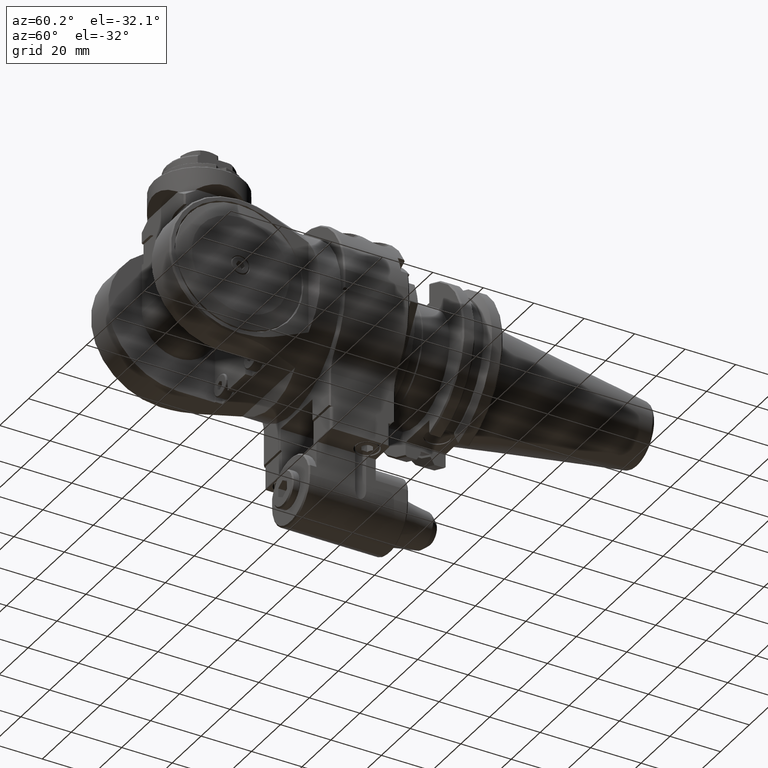
[diagram: clean part render]
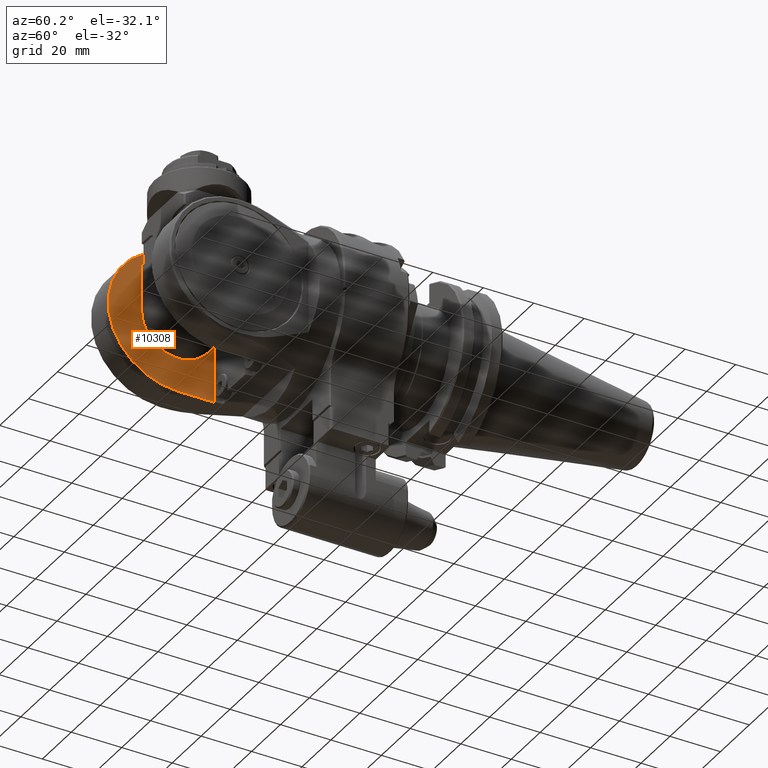
[diagram: same view with one face highlighted and labeled with its STEP entity id]
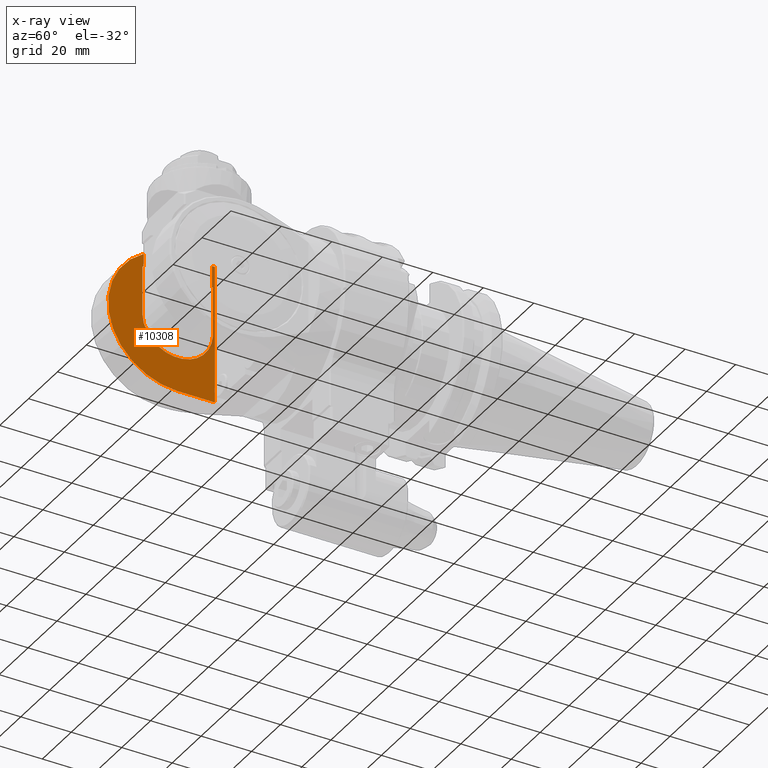
[diagram: x-ray of the same camera — body ghosted, the highlighted face saturated]
A machine part, auxiliary view. The second image highlights one B-rep face of the part: STEP entity #10308.
The next image is the same camera in x-ray: the body ghosted, the highlighted face saturated — about 3% of this face is hidden behind the body in this view.
In plain terms, the highlighted planar face has unit normal (-1, 0, 0).
Its self-contained STEP definition (entity closure, byte-faithful):
#694=LINE('',#16963,#1530);
#706=LINE('',#17006,#1542);
#866=LINE('',#18290,#1702);
#867=LINE('',#18291,#1703);
#868=LINE('',#18293,#1704);
#869=LINE('',#18295,#1705);
#870=LINE('',#18296,#1706);
#871=LINE('',#18297,#1707);
#872=LINE('',#18298,#1708);
#1530=VECTOR('',#12962,14.75);
#1542=VECTOR('',#12990,1.25);
#1702=VECTOR('',#13640,0.4731886124821);
#1703=VECTOR('',#13641,19.66643457369);
#1704=VECTOR('',#13642,19.6664345737);
#1705=VECTOR('',#13643,0.4731886124821);
#1706=VECTOR('',#13644,5.157887931536);
#1707=VECTOR('',#13645,55.);
#1708=VECTOR('',#13646,8.699590830114);
#2614=FACE_OUTER_BOUND('',#3285,.T.);
#3285=EDGE_LOOP('',(#8406,#8407,#8408,#8409,#8410,#8411,#8412,#8413,#8414,
#8415,#8416));
#3754=CIRCLE('',#11039,27.5);
#3874=CIRCLE('',#11285,14.);
#4435=VERTEX_POINT('',#16915);
#4453=VERTEX_POINT('',#16961);
#4455=VERTEX_POINT('',#16966);
#4469=VERTEX_POINT('',#17001);
#4470=VERTEX_POINT('',#17005);
#4698=VERTEX_POINT('',#18264);
#4699=VERTEX_POINT('',#18265);
#4700=VERTEX_POINT('',#18288);
#4701=VERTEX_POINT('',#18289);
#4702=VERTEX_POINT('',#18292);
#4703=VERTEX_POINT('',#18294);
#5650=EDGE_CURVE('',#4435,#4453,#694,.T.);
#5656=EDGE_CURVE('',#4455,#4435,#3754,.T.);
#5669=EDGE_CURVE('',#4470,#4469,#706,.T.);
#6006=EDGE_CURVE('',#4698,#4699,#3874,.T.);
#6009=EDGE_CURVE('',#4700,#4701,#866,.T.);
#6010=EDGE_CURVE('',#4699,#4700,#867,.T.);
#6011=EDGE_CURVE('',#4698,#4702,#868,.T.);
#6012=EDGE_CURVE('',#4703,#4702,#869,.T.);
#6013=EDGE_CURVE('',#4455,#4703,#870,.T.);
#6014=EDGE_CURVE('',#4470,#4453,#871,.T.);
#6015=EDGE_CURVE('',#4469,#4701,#872,.T.);
#8406=ORIENTED_EDGE('',*,*,#6009,.F.);
#8407=ORIENTED_EDGE('',*,*,#6010,.F.);
#8408=ORIENTED_EDGE('',*,*,#6006,.F.);
#8409=ORIENTED_EDGE('',*,*,#6011,.T.);
#8410=ORIENTED_EDGE('',*,*,#6012,.F.);
#8411=ORIENTED_EDGE('',*,*,#6013,.F.);
#8412=ORIENTED_EDGE('',*,*,#5656,.T.);
#8413=ORIENTED_EDGE('',*,*,#5650,.T.);
#8414=ORIENTED_EDGE('',*,*,#6014,.F.);
#8415=ORIENTED_EDGE('',*,*,#5669,.T.);
#8416=ORIENTED_EDGE('',*,*,#6015,.T.);
#9805=PLANE('',#11286);
#10308=ADVANCED_FACE('',(#2614),#9805,.F.);
#11039=AXIS2_PLACEMENT_3D('',#16975,#12974,#12975);
#11285=AXIS2_PLACEMENT_3D('',#18266,#13636,#13637);
#11286=AXIS2_PLACEMENT_3D('',#18287,#13638,#13639);
#12962=DIRECTION('',(0.,1.,0.));
#12974=DIRECTION('center_axis',(1.,0.,0.));
#12975=DIRECTION('ref_axis',(0.,-0.490909090909084,0.871210803688072));
#12990=DIRECTION('',(0.,-1.,0.));
#13636=DIRECTION('center_axis',(1.,0.,0.));
#13637=DIRECTION('ref_axis',(0.,-0.998084900891314,-0.0618589574174609));
#13638=DIRECTION('center_axis',(-1.,0.,0.));
#13639=DIRECTION('ref_axis',(0.,-1.,0.));
#13640=DIRECTION('',(0.,-1.,-1.501605738213E-14));
#13641=DIRECTION('',(0.,0.,1.));
#13642=DIRECTION('',(0.,0.,1.));
#13643=DIRECTION('',(0.,-1.,0.));
#13644=DIRECTION('',(0.,0.,-1.));
#13645=DIRECTION('',(0.,0.,-1.));
#13646=DIRECTION('',(0.,0.,-1.));
#16915=CARTESIAN_POINT('',(-15.,-38.5,-27.5));
#16961=CARTESIAN_POINT('',(-15.,-23.75,-27.5));
#16963=CARTESIAN_POINT('',(-15.,-38.5,-27.5));
#16966=CARTESIAN_POINT('',(-15.,-52.,23.95829710142));
#16975=CARTESIAN_POINT('Origin',(-15.,-38.5,0.));
#17001=CARTESIAN_POINT('',(-15.,-25.,27.5));
#17005=CARTESIAN_POINT('',(-15.,-23.75,27.5));
#17006=CARTESIAN_POINT('',(-15.,-23.75,27.5));
#18264=CARTESIAN_POINT('',(-15.,-52.47318861248,-0.8660254038101));
#18265=CARTESIAN_POINT('',(-15.,-24.52681138752,-0.8660254038036));
#18266=CARTESIAN_POINT('Origin',(-15.,-38.5,0.));
#18287=CARTESIAN_POINT('Origin',(-15.,-18.5,42.6000024));
#18288=CARTESIAN_POINT('',(-15.,-24.52681138752,18.80040916989));
#18289=CARTESIAN_POINT('',(-15.,-25.,18.80040916989));
#18290=CARTESIAN_POINT('',(-15.,-24.52681138752,18.80040916989));
#18291=CARTESIAN_POINT('',(-15.,-24.52681138752,-0.8660254038036));
#18292=CARTESIAN_POINT('',(-15.,-52.47318861248,18.80040916989));
#18293=CARTESIAN_POINT('',(-15.,-52.47318861248,-0.8660254038101));
#18294=CARTESIAN_POINT('',(-15.,-52.,18.80040916989));
#18295=CARTESIAN_POINT('',(-15.,-52.,18.80040916989));
#18296=CARTESIAN_POINT('',(-15.,-52.,23.95829710142));
#18297=CARTESIAN_POINT('',(-15.,-23.75,27.5));
#18298=CARTESIAN_POINT('',(-15.,-25.,27.5));